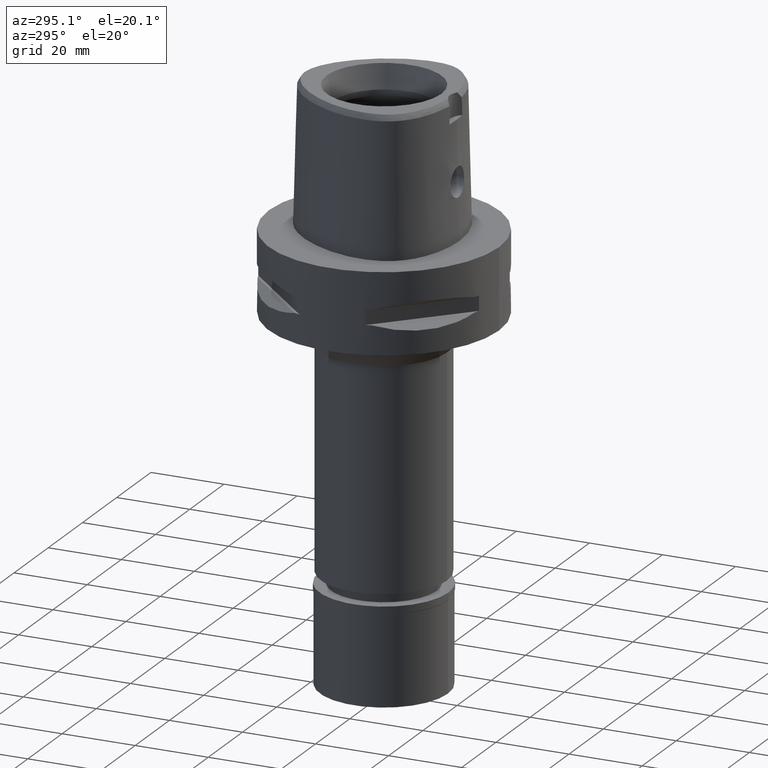
[diagram: clean part render]
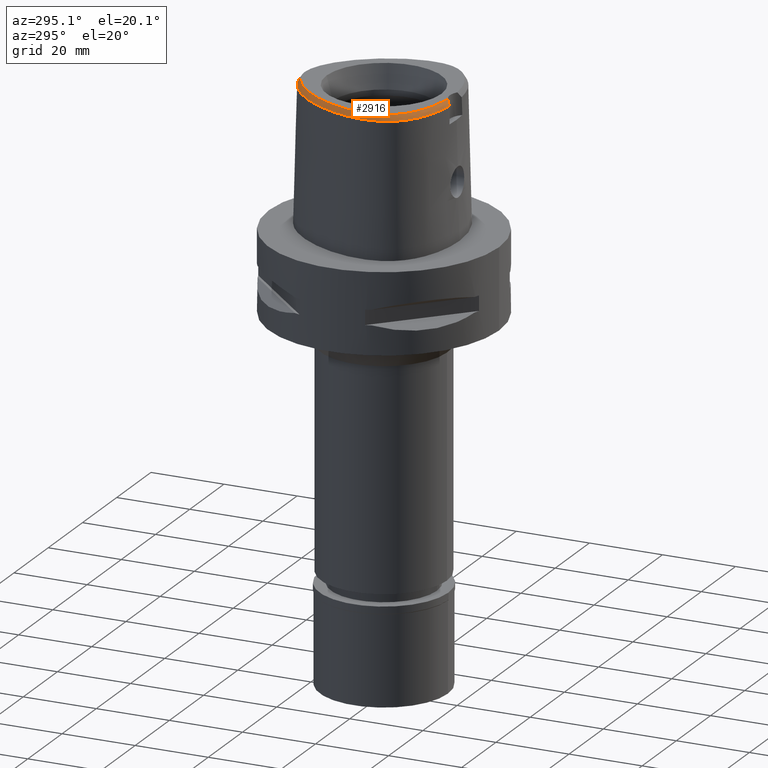
[diagram: same view with one face highlighted and labeled with its STEP entity id]
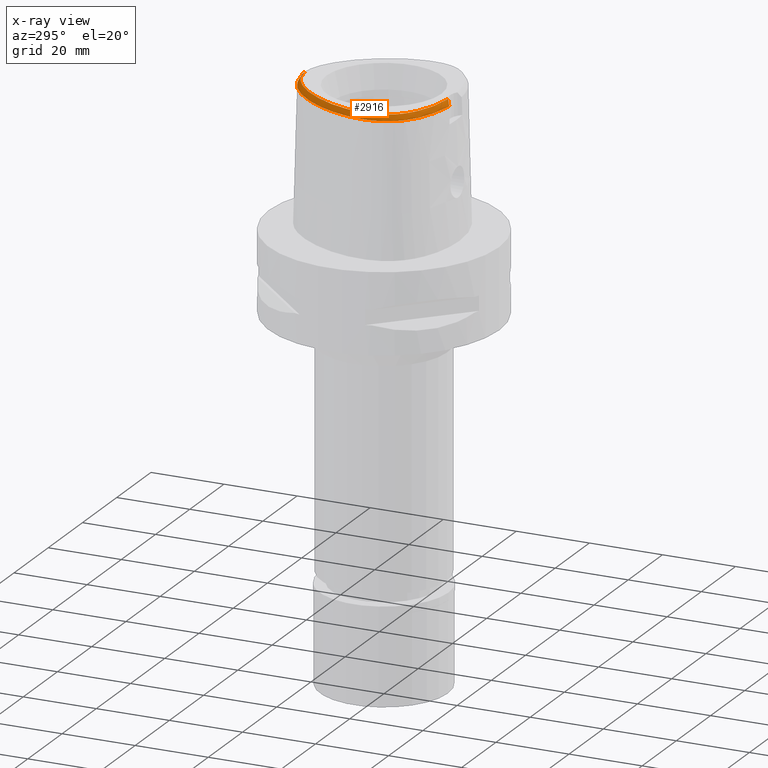
[diagram: x-ray of the same camera — body ghosted, the highlighted face saturated]
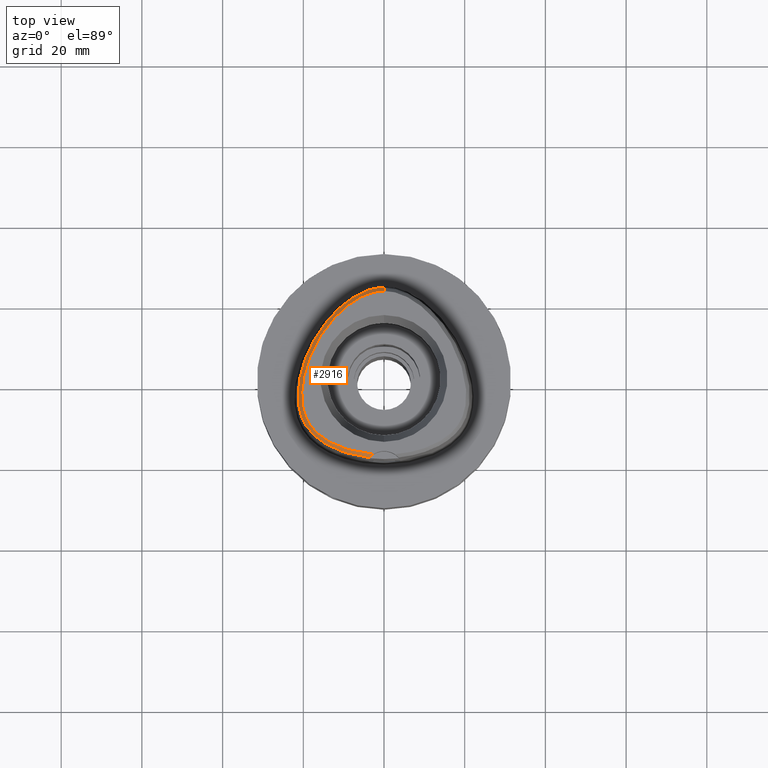
[diagram: same view with one face highlighted and labeled with its STEP entity id]
A machine part, auxiliary view. The second image highlights one B-rep face of the part: STEP entity #2916.
The next image is the same camera in x-ray: the body ghosted, the highlighted face saturated — about 0% of this face is hidden behind the body in this view.
A second angle (top view) of the same face is appended — the face is thin or edge-on in the first view.
In plain terms, the highlighted face is a freeform B-spline surface patch.
Its self-contained STEP definition (entity closure, byte-faithful):
#2 = CARTESIAN_POINT ( 'NONE',  ( -21.00102943122999832, -3.250534568820000025, 36.95511061116999940 ) ) ;
#20 = VECTOR ( 'NONE', #778, 1000.000000000000227 ) ;
#28 = CARTESIAN_POINT ( 'NONE',  ( -20.98135576022000137, -5.318492603149000963, 36.95511126988999706 ) ) ;
#46 = CARTESIAN_POINT ( 'NONE',  ( -15.14921443966999881, -15.03695163559000036, 37.56671062865999744 ) ) ;
#54 = CARTESIAN_POINT ( 'NONE',  ( -2.064446803804000030, 21.75495722301000256, 37.56671036800000252 ) ) ;
#69 = CARTESIAN_POINT ( 'NONE',  ( -17.62665437073999897, -13.92278033562000061, 36.34351080245999555 ) ) ;
#83 = CARTESIAN_POINT ( 'NONE',  ( -1.323674540694137924, 21.61098849315630588, 37.99999999999813127 ) ) ;
#103 = CARTESIAN_POINT ( 'NONE',  ( -12.48121752644000004, -16.57284500088999835, 37.56671032302000413 ) ) ;
#111 = CARTESIAN_POINT ( 'NONE',  ( 0.6489545801235000466, 22.65011139982999921, 36.34351040314999892 ) ) ;
#128 = CARTESIAN_POINT ( 'NONE',  ( -8.900063453854000883, -17.54880137481999824, 38.17830965451000225 ) ) ;
#139 = CARTESIAN_POINT ( 'NONE',  ( -0.2181979014508502734, 21.68728795389289132, 37.99999999999408118 ) ) ;
#154 = CARTESIAN_POINT ( 'NONE',  ( -13.62909769844999985, -16.39552295365000134, 36.95511059141999510 ) ) ;
#161 = CARTESIAN_POINT ( 'NONE',  ( 0.4143115233763999816, 22.29992787075000038, 36.95511062957000092 ) ) ;
#187 = CARTESIAN_POINT ( 'NONE',  ( -13.33457781969839218, -15.85148397417214561, 38.00000000000284217 ) ) ;
#194 = CARTESIAN_POINT ( 'NONE',  ( -16.06363522287999857, 11.79997895842000055, 36.34351191068999753 ) ) ;
#199 = CARTESIAN_POINT ( 'NONE',  ( -15.24692477332519225, 11.25717358966607407, 38.00000000000738254 ) ) ;
#213 = CARTESIAN_POINT ( 'NONE',  ( -6.889690244847000322, 19.87555726357999930, 37.56671037325000384 ) ) ;
#218 = CARTESIAN_POINT ( 'NONE',  ( -17.90324032096775397, -13.53935111954965009, 36.52186244847999319 ) ) ;
#232 = CARTESIAN_POINT ( 'NONE',  ( -16.00748501253000100, 9.854529870437000127, 38.17831010891999455 ) ) ;
#253 = CARTESIAN_POINT ( 'NONE',  ( -15.71788912669132898, -14.29843101566465435, 37.99999999999590727 ) ) ;
#259 = CARTESIAN_POINT ( 'NONE',  ( -12.63226714992000055, 15.06240004136000010, 37.56671060359000336 ) ) ;
#263 = CARTESIAN_POINT ( 'NONE',  ( -19.55745547456097810, -11.29150218116449977, 36.52186244847999319 ) ) ;
#284 = CARTESIAN_POINT ( 'NONE',  ( -18.69730926178999653, 4.220137340517999824, 38.17831017808000382 ) ) ;
#288 = CARTESIAN_POINT ( 'NONE',  ( -20.09619618740927294, -10.23243843868758063, 36.52186244847999319 ) ) ;
#302 = CARTESIAN_POINT ( 'NONE',  ( -18.31748213707045991, -11.58791794387878937, 37.99999999999290168 ) ) ;
#306 = CARTESIAN_POINT ( 'NONE',  ( -19.37774529549000135, 4.467909294189999159, 36.95511023984000332 ) ) ;
#327 = CARTESIAN_POINT ( 'NONE',  ( -20.25863257359999992, -5.271641003873999587, 38.17831000230999905 ) ) ;
#352 = CARTESIAN_POINT ( 'NONE',  ( -20.54800831522000237, 0.3479194140190000062, 36.95511287576000115 ) ) ;
#376 = CARTESIAN_POINT ( 'NONE',  ( -20.89312111405000039, -6.256763397701000429, 36.95511092666999531 ) ) ;
#380 = CARTESIAN_POINT ( 'NONE',  ( -1.667908476505000272E-11, 22.56201468012000078, 36.52186680743999858 ) ) ;
#403 = CARTESIAN_POINT ( 'NONE',  ( -21.36276854922999746, -3.234256517494000338, 36.34351085939999848 ) ) ;
#431 = CARTESIAN_POINT ( 'NONE',  ( -18.23078284522000203, -11.52765225463999954, 38.17831014231000353 ) ) ;
#452 = CARTESIAN_POINT ( 'NONE',  ( -12.32610348629000008, -16.24565034941999997, 38.17831013114000172 ) ) ;
#483 = CARTESIAN_POINT ( 'NONE',  ( -17.00823855181999633, -14.50095648319999952, 36.34351069871999584 ) ) ;
#493 = CARTESIAN_POINT ( 'NONE',  ( -2.709960719620000180, 21.24319296506000043, 38.17831004709999831 ) ) ;
#500 = CARTESIAN_POINT ( 'NONE',  ( -9.524337278002114715, 17.70558492631212744, 38.00000000000117240 ) ) ;
#517 = CARTESIAN_POINT ( 'NONE',  ( -10.37699852803000056, -17.82987225919999830, 36.95511229073999715 ) ) ;
#525 = CARTESIAN_POINT ( 'NONE',  ( -4.474848303687999795, 21.44474271624000039, 36.95511061594999802 ) ) ;
#530 = CARTESIAN_POINT ( 'NONE',  ( -16.88647904405097577, 8.517821442302913937, 38.00000000000260059 ) ) ;
#544 = CARTESIAN_POINT ( 'NONE',  ( -6.305316006163000253, -18.92573707572000075, 36.95511051980999895 ) ) ;
#550 = CARTESIAN_POINT ( 'NONE',  ( 0.6088062083526000201, 21.92739685778999714, 37.56671024359999933 ) ) ;
#557 = ORIENTED_EDGE ( 'NONE', *, *, #4214, .T. ) ;
#575 = CARTESIAN_POINT ( 'NONE',  ( -13.32239885386000111, 13.69615550035999973, 38.17831016678999845 ) ) ;
#580 = CARTESIAN_POINT ( 'NONE',  ( -16.09805956313734399, 9.908742513516772377, 38.00000000000199663 ) ) ;
#595 = CARTESIAN_POINT ( 'NONE',  ( -4.743293269510999721, -18.82114659746000029, 37.56671038043000266 ) ) ;
#601 = CARTESIAN_POINT ( 'NONE',  ( -14.25898094420000106, 12.48508508285999952, 38.17831003239999887 ) ) ;
#620 = CARTESIAN_POINT ( 'NONE',  ( -8.930096025510366076, -17.65000298921187394, 37.99999999999752021 ) ) ;
#625 = CARTESIAN_POINT ( 'NONE',  ( -7.073550691091000431, 20.18751749217000224, 36.95511063603999702 ) ) ;
#628 = CARTESIAN_POINT ( 'NONE',  ( -2.682279906006999948, -18.78035848609999903, 38.00000000000000000 ) ) ;
#650 = CARTESIAN_POINT ( 'NONE',  ( -18.48950513460999900, 7.520691064685999905, 36.34351193996000262 ) ) ;
#653 = CARTESIAN_POINT ( 'NONE',  ( -3.637738201363999835, -19.56971413236999879, 36.52186244848000030 ) ) ;
#654 = CARTESIAN_POINT ( 'NONE',  ( -7.300578999876961461, -19.07170748891781642, 36.52186244847999319 ) ) ;
#677 = CARTESIAN_POINT ( 'NONE',  ( -16.93949113158000230, 10.41237437246999953, 36.34351091327000205 ) ) ;
#681 = CARTESIAN_POINT ( 'NONE',  ( -19.88562090098304225, 4.345879983791733459, 36.52186244847999319 ) ) ;
#699 = CARTESIAN_POINT ( 'NONE',  ( -6.188376196366188076, -18.31830638231296504, 37.99999999999410960 ) ) ;
#702 = CARTESIAN_POINT ( 'NONE',  ( -18.58579624952999865, -10.98086790264000001, 38.17831008964000006 ) ) ;
#726 = CARTESIAN_POINT ( 'NONE',  ( -21.25258978152000111, -6.300570171731000535, 36.34351135956000434 ) ) ;
#730 = CARTESIAN_POINT ( 'NONE',  ( -17.27359245832990808, 9.972912913898122511, 36.52186244847999319 ) ) ;
#755 = CARTESIAN_POINT ( 'NONE',  ( -20.56028056977000062, -2.152254876957000018, 37.56671025525000118 ) ) ;
#778 = DIRECTION ( 'NONE',  ( -1.049600121539012948E-11, -0.5092834681090075977, 0.8605988316927122295 ) ) ;
#780 = CARTESIAN_POINT ( 'NONE',  ( -20.46784976234999931, -9.571995143602000766, 36.34351135985999548 ) ) ;
#802 = LINE ( 'NONE', #4300, #20 ) ;
#803 = CARTESIAN_POINT ( 'NONE',  ( -19.86448894148000122, -10.92416790875000032, 36.34351060221000296 ) ) ;
#831 = CARTESIAN_POINT ( 'NONE',  ( -9.209096624503999351, -18.59015927545000224, 36.34351513467000672 ) ) ;
#856 = CARTESIAN_POINT ( 'NONE',  ( -13.28431807553000077, -15.75864385743000184, 38.17831011809000330 ) ) ;
#864 = CARTESIAN_POINT ( 'NONE',  ( -0.02769210695919000279, 22.67416389592000314, 36.34351122328000372 ) ) ;
#868 = CARTESIAN_POINT ( 'NONE',  ( -2.735698246183103866, 21.34559102902262495, 37.99999999999898392 ) ) ;
#884 = CARTESIAN_POINT ( 'NONE',  ( -17.91221875991000090, -13.09629732174999894, 36.95511066914999532 ) ) ;
#891 = CARTESIAN_POINT ( 'NONE',  ( 0.6288803942381000489, 22.28875412880999818, 36.95511032338000490 ) ) ;
#896 = CARTESIAN_POINT ( 'NONE',  ( -0.6498990081534736785, 21.67378274708021735, 37.99999999999707967 ) ) ;
#914 = CARTESIAN_POINT ( 'NONE',  ( -16.52979968160999746, -13.95719862706000036, 37.56671032092000218 ) ) ;
#924 = CARTESIAN_POINT ( 'NONE',  ( 0.5887320224670999913, 21.56603958677999699, 38.17831016382999820 ) ) ;
#939 = CARTESIAN_POINT ( 'NONE',  ( -15.65286253192999943, -14.21525480452000068, 38.17831009545000143 ) ) ;
#964 = CARTESIAN_POINT ( 'NONE',  ( -3.549863245251999366, -18.96314958482000179, 37.56671060755000013 ) ) ;
#971 = CARTESIAN_POINT ( 'NONE',  ( -0.7113603786769000514, 22.65276600530000195, 36.34351065005999715 ) ) ;
#1000 = CARTESIAN_POINT ( 'NONE',  ( -7.596799095080999820, 19.00659360902999850, 38.17831010643000411 ) ) ;
#1022 = CARTESIAN_POINT ( 'NONE',  ( -2.682279906006999948, -18.78035848609999903, 38.00000000000000000 ) ) ;
#1028 = CARTESIAN_POINT ( 'NONE',  ( -8.515240679879001462, 18.36184347069000111, 38.17831016852000658 ) ) ;
#1045 = CARTESIAN_POINT ( 'NONE',  ( -3.587927038058000395, -19.32313742839000170, 36.95511120105000202 ) ) ;
#1053 = CARTESIAN_POINT ( 'NONE',  ( -17.50897974303999760, 7.053358007689999987, 38.17830999840000317 ) ) ;
#1079 = CARTESIAN_POINT ( 'NONE',  ( -5.163151769510000655, 20.76856345068999943, 37.56671050388000310 ) ) ;
#1084 = CARTESIAN_POINT ( 'NONE',  ( -3.470663397179000465E-11, 21.68728795390000030, 38.00000000000000000 ) ) ;
#1106 = CARTESIAN_POINT ( 'NONE',  ( -6.344287324001999906, 21.00342052184999986, 36.34351153978000326 ) ) ;
#1126 = CARTESIAN_POINT ( 'NONE',  ( -20.38301517463064627, -3.278344853328179820, 38.00000000000311928 ) ) ;
#1128 = CARTESIAN_POINT ( 'NONE',  ( -21.11606385792999774, -7.198823815722000141, 36.34351070759999658 ) ) ;
#1150 = CARTESIAN_POINT ( 'NONE',  ( -21.12979094358999888, -0.8629118107976000429, 36.34351141299999455 ) ) ;
#1180 = CARTESIAN_POINT ( 'NONE',  ( -20.58550223145999780, -7.955585324347000054, 36.95511055069999884 ) ) ;
#1207 = CARTESIAN_POINT ( 'NONE',  ( -19.45031256400000075, -9.191159262313000511, 38.17831006085000212 ) ) ;
#1226 = CARTESIAN_POINT ( 'NONE',  ( -20.72041663207999918, -8.830619310370998676, 36.34351086835000189 ) ) ;
#1256 = CARTESIAN_POINT ( 'NONE',  ( -18.52815949970000275, -11.73436223650000088, 37.56671029586999566 ) ) ;
#1264 = CARTESIAN_POINT ( 'NONE',  ( -3.449245470848000039, 21.03441036834999878, 38.17831006123999771 ) ) ;
#1284 = CARTESIAN_POINT ( 'NONE',  ( -16.76901911670999823, -14.22907755513000083, 36.95511050981999546 ) ) ;
#1296 = CARTESIAN_POINT ( 'NONE',  ( -8.578220530113439324, 18.44656747109592843, 38.00000000000449063 ) ) ;
#1312 = CARTESIAN_POINT ( 'NONE',  ( -11.27774951864000030, -16.71033914108999952, 38.17831013875000679 ) ) ;
#1319 = CARTESIAN_POINT ( 'NONE',  ( -4.345907579218999395, 21.10634236079999937, 37.56671036492999605 ) ) ;
#1323 = CARTESIAN_POINT ( 'NONE',  ( -2.017025177696206484, 21.50280829368114510, 37.99999999999505462 ) ) ;
#1337 = CARTESIAN_POINT ( 'NONE',  ( -9.003074510738001024, -17.89592067502999839, 37.56671148123000137 ) ) ;
#1346 = CARTESIAN_POINT ( 'NONE',  ( -0.6886679516403000356, 22.29131122541000209, 36.95511047912000180 ) ) ;
#1350 = CARTESIAN_POINT ( 'NONE',  ( -18.24302769442206440, 5.671232572958088802, 37.99999999999547384 ) ) ;
#1375 = CARTESIAN_POINT ( 'NONE',  ( -4.254559144977671181, 20.86660163697122172, 37.99999999999945999 ) ) ;
#1386 = CARTESIAN_POINT ( 'NONE',  ( -2.128803062283000092, -19.80221074915999679, 36.34351180180999563 ) ) ;
#1393 = CARTESIAN_POINT ( 'NONE',  ( -13.17174738553999980, 15.54546549187999993, 36.34351177938999911 ) ) ;
#1411 = CARTESIAN_POINT ( 'NONE',  ( -2.084353859714000112, -19.07971447002000076, 37.56671060944999851 ) ) ;
#1421 = CARTESIAN_POINT ( 'NONE',  ( -5.459378387970000190, 21.42946370852000371, 36.34351139822999954 ) ) ;
#1445 = CARTESIAN_POINT ( 'NONE',  ( -10.14935895585999859, 18.46131327624000207, 36.34351244778000023 ) ) ;
#1467 = CARTESIAN_POINT ( 'NONE',  ( -10.41831014525999954, 16.78848452799000057, 38.17830967361999939 ) ) ;
#1471 = CARTESIAN_POINT ( 'NONE',  ( -21.14970188364319981, -6.717195958887502982, 36.52186244847999319 ) ) ;
#1485 = CARTESIAN_POINT ( 'NONE',  ( -2.841965291530418991, -18.76757795571528931, 37.99999999999712230 ) ) ;
#1491 = CARTESIAN_POINT ( 'NONE',  ( -9.687824867092999170, 17.90326159948000040, 37.56671077841999562 ) ) ;
#1496 = CARTESIAN_POINT ( 'NONE',  ( -14.22011356155736017, -16.41829364186009954, 36.52186244847999319 ) ) ;
#1515 = CARTESIAN_POINT ( 'NONE',  ( -20.27898581532421218, -6.181921586190105344, 38.00000000000074607 ) ) ;
#1520 = CARTESIAN_POINT ( 'NONE',  ( -20.05575205312999998, -1.025498757041999998, 38.17831005512999809 ) ) ;
#1541 = CARTESIAN_POINT ( 'NONE',  ( -20.59419922445000140, 1.764168493356999878, 36.34351521504000004 ) ) ;
#1566 = CARTESIAN_POINT ( 'NONE',  ( -19.78949163012000056, -9.318104556075999412, 37.56671049384999606 ) ) ;
#1596 = CARTESIAN_POINT ( 'NONE',  ( -19.03752727863999894, 4.344023317354000824, 37.56671020895999646 ) ) ;
#1621 = CARTESIAN_POINT ( 'NONE',  ( -21.34271735352999855, -5.341918402786999920, 36.34351190366999873 ) ) ;
#1626 = CARTESIAN_POINT ( 'NONE',  ( -4.757642277158897315, 21.67478330407530862, 36.52186244847999319 ) ) ;
#1640 = CARTESIAN_POINT ( 'NONE',  ( -18.11130139015000395, -12.29693286596999968, 37.56671053323000820 ) ) ;
#1649 = CARTESIAN_POINT ( 'NONE',  ( -2.798239866780000362, 21.59441606085000132, 37.56671052725000237 ) ) ;
#1668 = CARTESIAN_POINT ( 'NONE',  ( -19.51487629300999771, -11.54418126975999925, 36.34351109240000000 ) ) ;
#1676 = VERTEX_POINT ( 'NONE', #5006 ) ;
#1699 = CARTESIAN_POINT ( 'NONE',  ( -13.80148750991999940, -16.71396250174999665, 36.34351082809000388 ) ) ;
#1705 = CARTESIAN_POINT ( 'NONE',  ( -4.216966854749999882, 20.76794200536999924, 38.17831011390000384 ) ) ;
#1710 = CARTESIAN_POINT ( 'NONE',  ( -20.16012968311599352, -1.009698174524602754, 38.00000000000296296 ) ) ;
#1722 = CARTESIAN_POINT ( 'NONE',  ( -15.56210993468999959, -15.63197133262000271, 36.34351187523999727 ) ) ;
#1751 = CARTESIAN_POINT ( 'NONE',  ( -14.72337912635999935, -16.18087779592999809, 36.34351139373000450 ) ) ;
#1761 = CARTESIAN_POINT ( 'NONE',  ( -0.02690467820651000139, 22.31202007358999850, 36.95511084070000152 ) ) ;
#1763 = B_SPLINE_SURFACE_WITH_KNOTS ( 'NONE', 3, 3, ( 
 ( #924, #550, #891, #111 ),
 ( #4073, #4874, #161, #3304 ),
 ( #2142, #3996, #1761, #864 ),
 ( #2480, #4491, #1346, #971 ),
 ( #4022, #4817, #2563, #3336 ),
 ( #3607, #54, #4788, #3279 ),
 ( #493, #1649, #2840, #3226 ),
 ( #1264, #2453, #4386, #3251 ),
 ( #1705, #1319, #525, #2116 ),
 ( #3684, #1079, #3808, #1421 ),
 ( #4971, #3357, #3455, #1106 ),
 ( #1835, #213, #625, #2966 ),
 ( #1000, #2611, #4587, #4540 ),
 ( #1028, #2225, #4616, #4895 ),
 ( #2655, #1491, #4565, #1445 ),
 ( #1467, #2996, #4995, #3068 ),
 ( #4155, #2689, #1881, #4178 ),
 ( #3381, #259, #2205, #1393 ),
 ( #575, #3764, #2589, #3406 ),
 ( #601, #3020, #2178, #4130 ),
 ( #4203, #3782, #3737, #194 ),
 ( #232, #4948, #3834, #677 ),
 ( #1787, #4516, #1808, #3041 ),
 ( #1053, #2632, #4917, #650 ),
 ( #2251, #1858, #3430, #2278 ),
 ( #284, #1596, #306, #4733 ),
 ( #3572, #3945, #2298, #3900 ),
 ( #3483, #1933, #3142, #1541 ),
 ( #3855, #2392, #352, #3878 ),
 ( #1520, #4686, #4638, #1150 ),
 ( #3115, #755, #4661, #4278 ),
 ( #3923, #1908, #2, #403 ),
 ( #2733, #3174, #2347, #2005 ),
 ( #327, #1957, #28, #1621 ),
 ( #5020, #3509, #376, #726 ),
 ( #4711, #3196, #2322, #1128 ),
 ( #2710, #3096, #1180, #3526 ),
 ( #5043, #5064, #2759, #1226 ),
 ( #1207, #1566, #4302, #780 ),
 ( #4326, #4253, #4228, #2368 ),
 ( #2783, #1978, #3547, #803 ),
 ( #702, #3273, #2110, #1668 ),
 ( #431, #1256, #2857, #4809 ),
 ( #2136, #1640, #4352, #2833 ),
 ( #2050, #3623, #884, #3244 ),
 ( #3970, #4780, #4400, #69 ),
 ( #3699, #914, #1284, #483 ),
 ( #939, #4428, #2506, #4378 ),
 ( #2446, #46, #2471, #1722 ),
 ( #4014, #2083, #3651, #1751 ),
 ( #856, #3295, #154, #1699 ),
 ( #452, #103, #4459, #2029 ),
 ( #1312, #3325, #4040, #4067 ),
 ( #2884, #3990, #517, #3677 ),
 ( #128, #1337, #3218, #831 ),
 ( #4754, #4836, #2912, #2806 ),
 ( #4865, #2532, #544, #2422 ),
 ( #3596, #595, #2218, #3425 ),
 ( #4091, #964, #1045, #4171 ),
 ( #3399, #3375, #3729, #2272 ),
 ( #2169, #4966, #3828, #4149 ),
 ( #4889, #1411, #1827, #1386 ) ),
 .UNSPECIFIED., .F., .F., .F.,
 ( 4, 1, 1, 1, 1, 1, 1, 1, 1, 1, 1, 1, 1, 1, 1, 1, 1, 1, 1, 1, 1, 1, 1, 1, 1, 1, 1, 1, 1, 1, 1, 1, 1, 1, 1, 1, 1, 1, 1, 1, 1, 1, 1, 1, 1, 1, 1, 1, 1, 1, 1, 1, 1, 1, 1, 1, 1, 1, 1, 4 ),
 ( 4, 4 ),
 ( -0.01585043674195000044, 0.0000000000000000000, 0.01776034072165999858, 0.03552068144391999638, 0.05328102216616999870, 0.07104136288842999303, 0.08880170361069000817, 0.1065620443330000111, 0.1243223850551999909, 0.1420827257775000019, 0.1598430664997000095, 0.1776034072219000171, 0.1953637479442000002, 0.2131240886664000078, 0.2308844293887999943, 0.2486447701109999742, 0.2664051108332999851, 0.2841654515554999927, 0.3019257922778000314, 0.3196861329999999835, 0.3374464737223000221, 0.3552068144444999742, 0.3729671551668000129, 0.3907274958890999961, 0.4084878366113000037, 0.4262481773335999868, 0.4440085180557999944, 0.4617688587780999776, 0.4795291995003000407, 0.4972895402225999684, 0.5150498809447999760, 0.5328102216671000146, 0.5505705623893999423, 0.5683309031115999499, 0.5860912438338999886, 0.6038515845561001072, 0.6216119252783999238, 0.6393722660005999314, 0.6571326067228999701, 0.6748929474452000088, 0.6926532881674000164, 0.7104136288896999440, 0.7281739696118999516, 0.7459343103341999903, 0.7636946510563999979, 0.7814549917787000366, 0.7992153325008999332, 0.8169756732231999719, 0.8347360139455000105, 0.8524963546678000492, 0.8702566953900000568, 0.8880170361122000644, 0.9057773768344999921, 0.9235377175566999997, 0.9412980582790000383, 0.9590583990012000459, 0.9768187397236000047, 0.9945790804457999013, 1.000000000000000000, 1.006922200500000031 ),
 ( -0.09676089982152999425, 1.096785682421999919 ),
 .UNSPECIFIED. ) ;
#1782 = CARTESIAN_POINT ( 'NONE',  ( -17.45119705494202478, -12.68365517585252533, 38.00000000000557776 ) ) ;
#1787 = CARTESIAN_POINT ( 'NONE',  ( -16.79344246096999527, 8.467952010211000413, 38.17831006875999833 ) ) ;
#1808 = CARTESIAN_POINT ( 'NONE',  ( -17.43166930758000177, 8.810054109541999523, 36.95511088048999682 ) ) ;
#1827 = CARTESIAN_POINT ( 'NONE',  ( -2.106578460997999613, -19.44096260958999878, 36.95511120563000418 ) ) ;
#1835 = CARTESIAN_POINT ( 'NONE',  ( -6.705829798604000302, 19.56359703500000080, 38.17831011047000089 ) ) ;
#1856 = CARTESIAN_POINT ( 'NONE',  ( -16.36032397153880069, -13.76458520345250314, 38.00000000000590461 ) ) ;
#1858 = CARTESIAN_POINT ( 'NONE',  ( -18.47956645472999782, 5.770460195703999595, 37.56671046005000392 ) ) ;
#1881 = CARTESIAN_POINT ( 'NONE',  ( -11.90572061914000024, 16.36214117635000065, 36.95511307029000392 ) ) ;
#1902 = CARTESIAN_POINT ( 'NONE',  ( -18.67608643722010342, -11.03561202291370513, 38.00000000000228084 ) ) ;
#1908 = CARTESIAN_POINT ( 'NONE',  ( -20.63929031321999830, -3.266812620147000246, 37.56671036294999766 ) ) ;
#1933 = CARTESIAN_POINT ( 'NONE',  ( -19.89279609761999978, 1.584054522843999946, 37.56671150225000133 ) ) ;
#1957 = CARTESIAN_POINT ( 'NONE',  ( -20.61999416690999709, -5.295066803511999431, 37.56671063609999806 ) ) ;
#1960 = CARTESIAN_POINT ( 'NONE',  ( -3.014271304820794306, -18.99139391531121035, 37.59976690312674208 ) ) ;
#1978 = CARTESIAN_POINT ( 'NONE',  ( -19.22258733829999855, -10.58856342826999963, 37.56671029566999920 ) ) ;
#2005 = CARTESIAN_POINT ( 'NONE',  ( -21.38132512229999804, -4.320571025711000601, 36.34351106457000213 ) ) ;
#2029 = CARTESIAN_POINT ( 'NONE',  ( -12.79144560673999820, -17.22723430382999865, 36.34351070676999740 ) ) ;
#2050 = CARTESIAN_POINT ( 'NONE',  ( -17.37252381547999747, -12.61323789613000024, 38.17831010482999687 ) ) ;
#2083 = CARTESIAN_POINT ( 'NONE',  ( -14.34429694810999933, -15.56378249009000037, 37.56671050271000212 ) ) ;
#2110 = CARTESIAN_POINT ( 'NONE',  ( -19.20518294518999980, -11.35641014738000010, 36.95511075814000179 ) ) ;
#2116 = CARTESIAN_POINT ( 'NONE',  ( -4.603789028156000995, 21.78314307167000052, 36.34351086697999733 ) ) ;
#2136 = CARTESIAN_POINT ( 'NONE',  ( -17.82723697491000081, -12.07228620069000158, 38.17831004463999989 ) ) ;
#2142 = CARTESIAN_POINT ( 'NONE',  ( -0.02532982070113999964, 21.58773242892999988, 38.17831007553999711 ) ) ;
#2146 = CARTESIAN_POINT ( 'NONE',  ( -17.60426951087013236, 7.098774535281521025, 37.99999999999900524 ) ) ;
#2162 = VERTEX_POINT ( 'NONE', #628 ) ;
#2169 = CARTESIAN_POINT ( 'NONE',  ( -2.266602053349000112, -18.70588333901000055, 38.17831000745999859 ) ) ;
#2178 = CARTESIAN_POINT ( 'NONE',  ( -14.84237172153000017, 12.91406982683000138, 36.95511109353000023 ) ) ;
#2205 = CARTESIAN_POINT ( 'NONE',  ( -12.90200726773000106, 15.30393276661999913, 36.95511119149000479 ) ) ;
#2209 = CARTESIAN_POINT ( 'NONE',  ( -10.91891098965358431, -18.03046406390091505, 36.52186244847999319 ) ) ;
#2218 = CARTESIAN_POINT ( 'NONE',  ( -4.794530045916999939, -19.17957276869000083, 36.95511065334000023 ) ) ;
#2221 = CARTESIAN_POINT ( 'NONE',  ( -11.31790883121412072, -16.80796958613696290, 37.99999999999825917 ) ) ;
#2225 = CARTESIAN_POINT ( 'NONE',  ( -8.731260173956000514, 18.65244491917999881, 37.56671023221999661 ) ) ;
#2230 = CARTESIAN_POINT ( 'NONE',  ( -3.637738201363999835, -19.56971413236999879, 36.52186244848000030 ) ) ;
#2251 = CARTESIAN_POINT ( 'NONE',  ( -18.14568575527000149, 5.630397788827999683, 38.17831007474999439 ) ) ;
#2255 = CARTESIAN_POINT ( 'NONE',  ( -18.90964971337862011, -12.28759719904343939, 36.52186244847999319 ) ) ;
#2272 = CARTESIAN_POINT ( 'NONE',  ( -2.715549083620000026, -19.76263000450000007, 36.34351190809000087 ) ) ;
#2278 = CARTESIAN_POINT ( 'NONE',  ( -19.14732785364000023, 6.050585009456000307, 36.34351123062999278 ) ) ;
#2289 = EDGE_CURVE ( 'NONE', #2162, #1676, #3590, .T. ) ;
#2295 = CARTESIAN_POINT ( 'NONE',  ( -19.54919922641956731, -9.228169790567967823, 38.00000000000279954 ) ) ;
#2298 = CARTESIAN_POINT ( 'NONE',  ( -19.85409426657000154, 3.051735813563000388, 36.95511196206999927 ) ) ;
#2322 = CARTESIAN_POINT ( 'NONE',  ( -20.75971175261999946, -7.134360385731000065, 36.95511051541999592 ) ) ;
#2326 = CARTESIAN_POINT ( 'NONE',  ( -2.376843896516897647, 22.39422508474007856, 36.52186244847999319 ) ) ;
#2347 = CARTESIAN_POINT ( 'NONE',  ( -21.01922805624000290, -4.317191450520999396, 36.95511074059000123 ) ) ;
#2350 = CARTESIAN_POINT ( 'NONE',  ( -3.339321438845773926, -19.25325016371907338, 37.10705438595341121 ) ) ;
#2368 = CARTESIAN_POINT ( 'NONE',  ( -20.18171704744000294, -10.26930599215000051, 36.34351108267000541 ) ) ;
#2392 = CARTESIAN_POINT ( 'NONE',  ( -20.19323196460999981, 0.2755352618130000319, 37.56671130202000342 ) ) ;
#2422 = CARTESIAN_POINT ( 'NONE',  ( -6.373763785811999760, -19.28128137091000127, 36.34351071456999449 ) ) ;
#2426 = CARTESIAN_POINT ( 'NONE',  ( -10.15538788053153674, 18.47129535094191155, 36.52186244847999319 ) ) ;
#2446 = CARTESIAN_POINT ( 'NONE',  ( -14.94276669215999931, -14.73944178707999875, 38.17831000537000108 ) ) ;
#2453 = CARTESIAN_POINT ( 'NONE',  ( -3.558221811805999835, 21.37976524016000113, 37.56671049289000308 ) ) ;
#2471 = CARTESIAN_POINT ( 'NONE',  ( -15.35566218718000009, -15.33446148410000021, 36.95511125195000091 ) ) ;
#2480 = CARTESIAN_POINT ( 'NONE',  ( -0.6432830975672000351, 21.56840166560999705, 38.17831013725000133 ) ) ;
#2491 = EDGE_LOOP ( 'NONE', ( #557, #4504, #3894, #2775 ) ) ;
#2506 = CARTESIAN_POINT ( 'NONE',  ( -16.09894209703999834, -14.78583993559999854, 36.95511072405000164 ) ) ;
#2520 = CARTESIAN_POINT ( 'NONE',  ( -14.34402387965797843, 12.54761970512409874, 37.99999999999850786 ) ) ;
#2530 = B_SPLINE_CURVE_WITH_KNOTS ( 'NONE', 3,
 ( #1022, #1485, #4225, #2607, #699, #3731, #620, #4561, #2221, #2627, #187, #3802, #3353, #253, #1856, #4968, #1782, #3036, #302, #1902, #2708, #4251, #2295, #3852, #3477, #5015, #1515, #4636, #3093, #1126, #4412, #1710, #4823, #4077, #2948, #4027, #1350, #2146, #530, #580, #199, #2520, #3741, #2544, #4105, #4054, #500, #1296, #2869, #3665, #3308, #2925, #1375, #3257, #868, #1323, #83, #896, #139, #2844 ),
 .UNSPECIFIED., .F., .F.,
 ( 4, 1, 1, 1, 1, 1, 1, 1, 1, 1, 1, 1, 1, 1, 1, 1, 1, 1, 1, 1, 1, 1, 1, 1, 1, 1, 1, 1, 1, 1, 1, 1, 1, 1, 1, 1, 1, 1, 1, 1, 1, 1, 1, 1, 1, 1, 1, 1, 1, 1, 1, 1, 1, 1, 1, 1, 1, 4 ),
 ( 0.0000000000000000000, 0.005420919554200098744, 0.02318126027639999531, 0.04094160099879995407, 0.05870194172099996166, 0.07646228244330000035, 0.09422262316550000794, 0.1119829638877999356, 0.1297433046099999432, 0.1475036453321999508, 0.1652639860544999895, 0.1830243267768000281, 0.2007846674991000668, 0.2185450082212999634, 0.2363053489436000021, 0.2540656896658000097, 0.2718260303881000484, 0.2895863711103000560, 0.3073467118325999836, 0.3251070525547999912, 0.3428673932771000299, 0.3606277339994000686, 0.3783880747216000762, 0.3961484154438998928, 0.4139087561661000114, 0.4316690968884000501, 0.4494294376106000577, 0.4671897783328999854, 0.4849501190552000240, 0.5027104597774000316, 0.5204708004996999593, 0.5382311412219000779, 0.5559914819442000056, 0.5737518226664000132, 0.5915121633886999408, 0.6092725041108999484, 0.6270328448331999871, 0.6447931855555000258, 0.6625535262777000334, 0.6803138669999999610, 0.6980742077221999686, 0.7158345484445000073, 0.7335948891667000149, 0.7513552298890000536, 0.7691155706112000612, 0.7868759113336000199, 0.8046362520558000275, 0.8223965927780999552, 0.8401569335002999628, 0.8579172742224999704, 0.8756776149448000091, 0.8934379556670000166, 0.9111982963893099363, 0.9289586371115700070, 0.9467189778338299666, 0.9644793185560800453, 0.9822396592783400049, 1.000000000000000000 ),
 .UNSPECIFIED. ) ;
#2532 = CARTESIAN_POINT ( 'NONE',  ( -6.236868226513999858, -18.57019278053000022, 37.56671032506000074 ) ) ;
#2544 = CARTESIAN_POINT ( 'NONE',  ( -12.44116897271115008, 14.89128547409350212, 38.00000000000318323 ) ) ;
#2563 = CARTESIAN_POINT ( 'NONE',  ( -1.400592116731999903, 22.22492229080999948, 36.95511025773000569 ) ) ;
#2589 = CARTESIAN_POINT ( 'NONE',  ( -13.88462404569999897, 14.15253690017999944, 36.95511030600999902 ) ) ;
#2607 = CARTESIAN_POINT ( 'NONE',  ( -4.706994425064950249, -18.56721852572889020, 38.00000000000612488 ) ) ;
#2611 = CARTESIAN_POINT ( 'NONE',  ( -7.797191349387999182, 19.30819150773999837, 37.56671038307000288 ) ) ;
#2627 = CARTESIAN_POINT ( 'NONE',  ( -12.37132652997708249, -16.34104299088107126, 37.99999999999445066 ) ) ;
#2632 = CARTESIAN_POINT ( 'NONE',  ( -17.83582154023000044, 7.209135693354999930, 37.56671064558999262 ) ) ;
#2655 = CARTESIAN_POINT ( 'NONE',  ( -9.457057822708000216, 17.62423576109999601, 38.17830994373999687 ) ) ;
#2689 = CARTESIAN_POINT ( 'NONE',  ( -11.64813121408000107, 16.10768419763999759, 37.56671138268000476 ) ) ;
#2708 = CARTESIAN_POINT ( 'NONE',  ( -18.99520880204248385, -10.46968343926506861, 37.99999999999807443 ) ) ;
#2710 = CARTESIAN_POINT ( 'NONE',  ( -19.88158196130999755, -7.785037542007000155, 38.17831012503999943 ) ) ;
#2733 = CARTESIAN_POINT ( 'NONE',  ( -20.29503392411000107, -4.310432300141999740, 38.17831009263999675 ) ) ;
#2759 = CARTESIAN_POINT ( 'NONE',  ( -20.37416932876999809, -8.724480372354001645, 36.95511061681999365 ) ) ;
#2763 = CARTESIAN_POINT ( 'NONE',  ( -7.108589416785409121, 20.52412325828072071, 36.52186244847999319 ) ) ;
#2775 = ORIENTED_EDGE ( 'NONE', *, *, #2289, .F. ) ;
#2783 = CARTESIAN_POINT ( 'NONE',  ( -18.90163653671000077, -10.42076118803999840, 38.17831014240000087 ) ) ;
#2806 = CARTESIAN_POINT ( 'NONE',  ( -7.831492257379000677, -18.96290750584000051, 36.34351390208000510 ) ) ;
#2833 = CARTESIAN_POINT ( 'NONE',  ( -18.67943022061000136, -12.74622619654999944, 36.34351151041000350 ) ) ;
#2840 = CARTESIAN_POINT ( 'NONE',  ( -2.886519013939000455, 21.94563915663000131, 36.95511100739999932 ) ) ;
#2844 = CARTESIAN_POINT ( 'NONE',  ( -3.470663397179000465E-11, 21.68728795390000030, 38.00000000000000000 ) ) ;
#2857 = CARTESIAN_POINT ( 'NONE',  ( -18.82553615417999993, -11.94107221836999955, 36.95511044943999934 ) ) ;
#2869 = CARTESIAN_POINT ( 'NONE',  ( -7.655222869371907102, 19.09452359226080631, 37.99999999999651834 ) ) ;
#2884 = CARTESIAN_POINT ( 'NONE',  ( -10.13626870084999965, -17.14688039710999945, 38.17830982809999796 ) ) ;
#2912 = CARTESIAN_POINT ( 'NONE',  ( -7.745789550232999865, -18.61111975806999652, 36.95511253044999478 ) ) ;
#2916 = ADVANCED_FACE ( 'NONE', ( #4467 ), #1763, .F. ) ;
#2925 = CARTESIAN_POINT ( 'NONE',  ( -5.058220461389346667, 20.53445508814549925, 37.99999999999403144 ) ) ;
#2948 = CARTESIAN_POINT ( 'NONE',  ( -19.26324493738488286, 2.868570891456704519, 38.00000000000258638 ) ) ;
#2966 = CARTESIAN_POINT ( 'NONE',  ( -7.257411137334000450, 20.49947772075000074, 36.34351089881999997 ) ) ;
#2996 = CARTESIAN_POINT ( 'NONE',  ( -10.66291587119999917, 17.05545344387000029, 37.56671143482000019 ) ) ;
#3020 = CARTESIAN_POINT ( 'NONE',  ( -14.55067633286999929, 12.69957745483999823, 37.56671056297000177 ) ) ;
#3036 = CARTESIAN_POINT ( 'NONE',  ( -17.91005512243474129, -12.13778127739829493, 37.99999999999965894 ) ) ;
#3041 = CARTESIAN_POINT ( 'NONE',  ( -17.75078273089000191, 8.981105159208000899, 36.34351128635999828 ) ) ;
#3068 = CARTESIAN_POINT ( 'NONE',  ( -11.15212732306000021, 17.58939127560999793, 36.34351495720999736 ) ) ;
#3073 = CARTESIAN_POINT ( 'NONE',  ( -21.32871527669617251, -4.105831244394257951, 36.52186244847999319 ) ) ;
#3093 = CARTESIAN_POINT ( 'NONE',  ( -20.40060226222821527, -4.311417605381353546, 38.00000000000544276 ) ) ;
#3096 = CARTESIAN_POINT ( 'NONE',  ( -20.23354209638999990, -7.870311433177000993, 37.56671033786999914 ) ) ;
#3115 = CARTESIAN_POINT ( 'NONE',  ( -20.19992301099999921, -2.187718092907999790, 38.17831015904000225 ) ) ;
#3121 = VERTEX_POINT ( 'NONE', #4482 ) ;
#3142 = CARTESIAN_POINT ( 'NONE',  ( -20.24349766103999926, 1.674111508099999979, 36.95511335865000291 ) ) ;
#3145 = CARTESIAN_POINT ( 'NONE',  ( -2.682279906006999948, -18.78035848609999903, 38.00000000000000000 ) ) ;
#3174 = CARTESIAN_POINT ( 'NONE',  ( -20.65713099016999976, -4.313811875331999168, 37.56671041661000032 ) ) ;
#3196 = CARTESIAN_POINT ( 'NONE',  ( -20.40335964731000118, -7.069896955739999100, 37.56671032324000237 ) ) ;
#3218 = CARTESIAN_POINT ( 'NONE',  ( -9.106085567620999299, -18.24303997523999854, 36.95511330795000049 ) ) ;
#3226 = CARTESIAN_POINT ( 'NONE',  ( -2.974798161098999749, 22.29686225241000130, 36.34351148755000338 ) ) ;
#3244 = CARTESIAN_POINT ( 'NONE',  ( -18.18206623212999773, -13.33782703454999918, 36.34351095131000164 ) ) ;
#3251 = CARTESIAN_POINT ( 'NONE',  ( -3.776174493723000403, 22.07047498378999961, 36.34351135617999518 ) ) ;
#3257 = CARTESIAN_POINT ( 'NONE',  ( -3.481017203588894215, 21.13509756881456170, 37.99999999999868550 ) ) ;
#3273 = CARTESIAN_POINT ( 'NONE',  ( -18.89548959736000455, -11.16863902500999828, 37.56671042389000092 ) ) ;
#3279 = CARTESIAN_POINT ( 'NONE',  ( -2.198320556028000361, 22.46678695259999969, 36.34351087874999564 ) ) ;
#3295 = CARTESIAN_POINT ( 'NONE',  ( -13.45670788699000120, -16.07708340554000159, 37.56671035476000498 ) ) ;
#3304 = CARTESIAN_POINT ( 'NONE',  ( 0.4277593798200000075, 22.66166935100999780, 36.34351088856999468 ) ) ;
#3308 = CARTESIAN_POINT ( 'NONE',  ( -5.893543501600794876, 20.13235399351773225, 38.00000000000266454 ) ) ;
#3325 = CARTESIAN_POINT ( 'NONE',  ( -11.41549507300999977, -17.04520940939000084, 37.56671030454000260 ) ) ;
#3336 = CARTESIAN_POINT ( 'NONE',  ( -1.445613887374999962, 22.58427301468999815, 36.34351029908000186 ) ) ;
#3353 = CARTESIAN_POINT ( 'NONE',  ( -15.00295592774251752, -14.82617991125944634, 38.00000000000103739 ) ) ;
#3357 = CARTESIAN_POINT ( 'NONE',  ( -6.011445045550999566, 20.36019979742999908, 37.56671054091999906 ) ) ;
#3375 = CARTESIAN_POINT ( 'NONE',  ( -2.658750559206000119, -19.04096655396000060, 37.56671063724999726 ) ) ;
#3381 = CARTESIAN_POINT ( 'NONE',  ( -12.36252703211000004, 14.82086731609999930, 38.17831001568999483 ) ) ;
#3399 = CARTESIAN_POINT ( 'NONE',  ( -2.630351296999000166, -18.68013482869000086, 38.17831000182999901 ) ) ;
#3406 = CARTESIAN_POINT ( 'NONE',  ( -14.16573664162000057, 14.38072760008999929, 36.34351037563000375 ) ) ;
#3425 = CARTESIAN_POINT ( 'NONE',  ( -4.845766822323000156, -19.53799893992000136, 36.34351092624000046 ) ) ;
#3430 = CARTESIAN_POINT ( 'NONE',  ( -18.81344715418000035, 5.910522602579999507, 36.95511084534000901 ) ) ;
#3455 = CARTESIAN_POINT ( 'NONE',  ( -6.177866184776999781, 20.68181015964000125, 36.95511104034999761 ) ) ;
#3477 = CARTESIAN_POINT ( 'NONE',  ( -19.98419490691699352, -7.809898894996188723, 38.00000000000263611 ) ) ;
#3483 = CARTESIAN_POINT ( 'NONE',  ( -19.54209453420000386, 1.493997537587000046, 38.17830964586000420 ) ) ;
#3509 = CARTESIAN_POINT ( 'NONE',  ( -20.53365244658000321, -6.212956623670999434, 37.56671049377000315 ) ) ;
#3526 = CARTESIAN_POINT ( 'NONE',  ( -20.93746236654000015, -8.040859215516000802, 36.34351076353999588 ) ) ;
#3547 = CARTESIAN_POINT ( 'NONE',  ( -19.54353813988999633, -10.75636566850999998, 36.95511044893999753 ) ) ;
#3572 = CARTESIAN_POINT ( 'NONE',  ( -19.16241664608999784, 2.837313842985999646, 38.17830988418999993 ) ) ;
#3576 = CARTESIAN_POINT ( 'NONE',  ( -13.70645028111027308, 15.04851272300713205, 36.52186244847999319 ) ) ;
#3590 = B_SPLINE_CURVE_WITH_KNOTS ( 'NONE', 3,
 ( #3145, #1960, #2350, #653 ),
 .UNSPECIFIED., .F., .F.,
 ( 4, 4 ),
 ( 0.0000000000000000000, 1.000000000000000000 ),
 .UNSPECIFIED. ) ;
#3596 = CARTESIAN_POINT ( 'NONE',  ( -4.692056493104999504, -18.46272042624000065, 38.17831010752999532 ) ) ;
#3607 = CARTESIAN_POINT ( 'NONE',  ( -1.997509927691999865, 21.39904235822000089, 38.17831011263000107 ) ) ;
#3623 = CARTESIAN_POINT ( 'NONE',  ( -17.64237128769000051, -12.85476760893999959, 37.56671038698999610 ) ) ;
#3651 = CARTESIAN_POINT ( 'NONE',  ( -14.53383803723999890, -15.87233014301000011, 36.95511094821999620 ) ) ;
#3665 = CARTESIAN_POINT ( 'NONE',  ( -6.759433772717093447, 19.65454812512764704, 37.99999999999567279 ) ) ;
#3677 = CARTESIAN_POINT ( 'NONE',  ( -10.49736344161999924, -18.17136819024999994, 36.34351352206000030 ) ) ;
#3684 = CARTESIAN_POINT ( 'NONE',  ( -5.015038460279000354, 20.43811332177999773, 38.17831005670999645 ) ) ;
#3699 = CARTESIAN_POINT ( 'NONE',  ( -16.29058024651000380, -13.68531969898999989, 38.17831013202000179 ) ) ;
#3729 = CARTESIAN_POINT ( 'NONE',  ( -2.687149821413000073, -19.40179827922999678, 36.95511127267000262 ) ) ;
#3731 = CARTESIAN_POINT ( 'NONE',  ( -7.599370508970913818, -18.01010694911502696, 38.00000000000472511 ) ) ;
#3737 = CARTESIAN_POINT ( 'NONE',  ( -15.76209391121000181, 11.59956736460999949, 36.95511127432000364 ) ) ;
#3741 = CARTESIAN_POINT ( 'NONE',  ( -13.40435640711556431, 13.76268382997501405, 37.99999999999725731 ) ) ;
#3764 = CARTESIAN_POINT ( 'NONE',  ( -13.60351144978000093, 13.92434620026999958, 37.56671023639999873 ) ) ;
#3769 = CARTESIAN_POINT ( 'NONE',  ( -16.39211280191641151, -14.95758113319163307, 36.52186244847999319 ) ) ;
#3782 = CARTESIAN_POINT ( 'NONE',  ( -15.46055259954999883, 11.39915577081000109, 37.56671063793999821 ) ) ;
#3802 = CARTESIAN_POINT ( 'NONE',  ( -14.21001600787389130, -15.34519100086036048, 37.99999999999980105 ) ) ;
#3808 = CARTESIAN_POINT ( 'NONE',  ( -5.311265078739999979, 21.09901357960999846, 36.95511095105999999 ) ) ;
#3828 = CARTESIAN_POINT ( 'NONE',  ( -2.315485943512000322, -19.42810676330000064, 36.95511123970999989 ) ) ;
#3834 = CARTESIAN_POINT ( 'NONE',  ( -16.62882242523000187, 10.22642620513000011, 36.95511064515000044 ) ) ;
#3852 = CARTESIAN_POINT ( 'NONE',  ( -19.78262210840194513, -8.543146992553010577, 38.00000000000549960 ) ) ;
#3855 = CARTESIAN_POINT ( 'NONE',  ( -19.83845561401000168, 0.2031511096071000055, 38.17830972827000124 ) ) ;
#3878 = CARTESIAN_POINT ( 'NONE',  ( -20.90278466582000050, 0.4203035662249999804, 36.34351444950999621 ) ) ;
#3894 = ORIENTED_EDGE ( 'NONE', *, *, #4591, .F. ) ;
#3900 = CARTESIAN_POINT ( 'NONE',  ( -20.19993307680000072, 3.158946798850999826, 36.34351300101999982 ) ) ;
#3923 = CARTESIAN_POINT ( 'NONE',  ( -20.27755119522000271, -3.283090671473000377, 38.17831011472000569 ) ) ;
#3945 = CARTESIAN_POINT ( 'NONE',  ( -19.50825545633000146, 2.944524828275000061, 37.56671092312999605 ) ) ;
#3970 = CARTESIAN_POINT ( 'NONE',  ( -16.86207789398000045, -13.15092139036000063, 38.17831012084000264 ) ) ;
#3990 = CARTESIAN_POINT ( 'NONE',  ( -10.25663361444000010, -17.48837632815000021, 37.56671105942000111 ) ) ;
#3996 = CARTESIAN_POINT ( 'NONE',  ( -0.02611724945382999999, 21.94987625125999742, 37.56671045812000642 ) ) ;
#4014 = CARTESIAN_POINT ( 'NONE',  ( -14.15475585898000155, -15.25523483715999973, 38.17831005720000093 ) ) ;
#4022 = CARTESIAN_POINT ( 'NONE',  ( -1.310548575444999919, 21.50622084305000214, 38.17831017503000623 ) ) ;
#4027 = CARTESIAN_POINT ( 'NONE',  ( -18.79649882724945797, 4.256255933891324617, 37.99999999999563016 ) ) ;
#4040 = CARTESIAN_POINT ( 'NONE',  ( -11.55324062739000013, -17.38007967769999951, 36.95511047032999841 ) ) ;
#4054 = CARTESIAN_POINT ( 'NONE',  ( -10.48962422759294455, 16.86631853279199333, 38.00000000000510170 ) ) ;
#4067 = CARTESIAN_POINT ( 'NONE',  ( -11.69098618177000048, -17.71494994599999728, 36.34351063612000132 ) ) ;
#4073 = CARTESIAN_POINT ( 'NONE',  ( 0.3874158104890000343, 21.57644491023999933, 38.17831011158000365 ) ) ;
#4077 = CARTESIAN_POINT ( 'NONE',  ( -19.64434054692929266, 1.520253387635530418, 37.99999999999799627 ) ) ;
#4091 = CARTESIAN_POINT ( 'NONE',  ( -3.511799452444999581, -18.60316174124999833, 38.17831001404999824 ) ) ;
#4105 = CARTESIAN_POINT ( 'NONE',  ( -11.46564124494619819, 15.92741340513660653, 38.00000000000040501 ) ) ;
#4130 = CARTESIAN_POINT ( 'NONE',  ( -15.13406711020000017, 13.12856219881000008, 36.34351162409000580 ) ) ;
#4149 = CARTESIAN_POINT ( 'NONE',  ( -2.339927888594000027, -19.78921847545000290, 36.34351185583999921 ) ) ;
#4155 = CARTESIAN_POINT ( 'NONE',  ( -11.39054180903000102, 15.85322721894000253, 38.17830969507000560 ) ) ;
#4171 = CARTESIAN_POINT ( 'NONE',  ( -3.625990830864000092, -19.68312527197000250, 36.34351179454999681 ) ) ;
#4178 = CARTESIAN_POINT ( 'NONE',  ( -12.16331002419000029, 16.61659815506000015, 36.34351475790000308 ) ) ;
#4183 = CARTESIAN_POINT ( 'NONE',  ( -4.467522189394354193, -19.48130287050563325, 36.52186244847999319 ) ) ;
#4203 = CARTESIAN_POINT ( 'NONE',  ( -15.15901128788000030, 11.19874417700000002, 38.17831000155999988 ) ) ;
#4214 = EDGE_CURVE ( 'NONE', #2162, #4358, #2530, .T. ) ;
#4225 = CARTESIAN_POINT ( 'NONE',  ( -3.522896839654057199, -18.70811514173412604, 37.99999999999583622 ) ) ;
#4228 = CARTESIAN_POINT ( 'NONE',  ( -19.85097473819000058, -10.12175920017999964, 36.95511075201000040 ) ) ;
#4251 = CARTESIAN_POINT ( 'NONE',  ( -19.28591707036709479, -9.869682450886850589, 37.99999999999588596 ) ) ;
#4253 = CARTESIAN_POINT ( 'NONE',  ( -19.52023242892999733, -9.974212408197999480, 37.56671042133999805 ) ) ;
#4276 = B_SPLINE_CURVE_WITH_KNOTS ( 'NONE', 3,
 ( #2230, #4183, #654, #2209, #1496, #3769, #218, #2255, #263, #288, #4976, #1471, #3073, #4592, #681, #730, #3576, #2426, #2763, #1626, #2326, #5068, #380 ),
 .UNSPECIFIED., .F., .F.,
 ( 4, 1, 1, 1, 1, 1, 1, 1, 1, 1, 1, 1, 1, 1, 1, 1, 1, 1, 1, 1, 4 ),
 ( 0.0000000000000000000, 0.03580973941715354797, 0.1234633994702160759, 0.1672902294965369629, 0.2111170595230682789, 0.2549438895494943735, 0.2768573045627073514, 0.2987707195759204959, 0.3206841345892386674, 0.3425975496023465627, 0.3864243796288777677, 0.4302512096553038901, 0.4740780396817299569, 0.5617316997345820351, 0.6493853597875395289, 0.7370390198403915516, 0.8246926798933490455, 0.8685195099197751123, 0.9123463399462432566, 0.9561731699726903067, 1.000000000000000000 ),
 .UNSPECIFIED. ) ;
#4278 = CARTESIAN_POINT ( 'NONE',  ( -21.28099568730000257, -2.081328445054999587, 36.34351044767999639 ) ) ;
#4300 = CARTESIAN_POINT ( 'NONE',  ( -1.667908476505000272E-11, 22.56201468012000078, 36.52186680743999858 ) ) ;
#4302 = CARTESIAN_POINT ( 'NONE',  ( -20.12867069622999949, -9.445049849839000089, 36.95511092685999444 ) ) ;
#4326 = CARTESIAN_POINT ( 'NONE',  ( -19.18949011967999851, -9.826665616220999766, 38.17831009068000014 ) ) ;
#4352 = CARTESIAN_POINT ( 'NONE',  ( -18.39536580537999910, -12.52157953126000045, 36.95511102181999519 ) ) ;
#4358 = VERTEX_POINT ( 'NONE', #1084 ) ;
#4378 = CARTESIAN_POINT ( 'NONE',  ( -16.32198187959999913, -15.07113250115000014, 36.34351103835000174 ) ) ;
#4386 = CARTESIAN_POINT ( 'NONE',  ( -3.667198152764999719, 21.72512011197999726, 36.95511092453000401 ) ) ;
#4400 = CARTESIAN_POINT ( 'NONE',  ( -17.37179554514999680, -13.66549402052999973, 36.95511057526000087 ) ) ;
#4412 = CARTESIAN_POINT ( 'NONE',  ( -20.30498420086667011, -2.177378896258324037, 38.00000000000241585 ) ) ;
#4428 = CARTESIAN_POINT ( 'NONE',  ( -15.87590231448999667, -14.50054737006000138, 37.56671040975000153 ) ) ;
#4459 = CARTESIAN_POINT ( 'NONE',  ( -12.63633156659000001, -16.90003965236000028, 36.95511051488999499 ) ) ;
#4467 = FACE_OUTER_BOUND ( 'NONE', #2491, .T. ) ;
#4482 = CARTESIAN_POINT ( 'NONE',  ( -1.667908476505000272E-11, 22.56201468012000078, 36.52186680743999858 ) ) ;
#4491 = CARTESIAN_POINT ( 'NONE',  ( -0.6659755246038000509, 21.92985644550999780, 37.56671030817999934 ) ) ;
#4504 = ORIENTED_EDGE ( 'NONE', *, *, #5022, .F. ) ;
#4516 = CARTESIAN_POINT ( 'NONE',  ( -17.11255588428000252, 8.639003059877000013, 37.56671047462999979 ) ) ;
#4540 = CARTESIAN_POINT ( 'NONE',  ( -8.197975858000999594, 19.91138730513999988, 36.34351093635999774 ) ) ;
#4561 = CARTESIAN_POINT ( 'NONE',  ( -10.17136073855599143, -17.24644253470561495, 38.00000000000039790 ) ) ;
#4565 = CARTESIAN_POINT ( 'NONE',  ( -9.918591911477999901, 18.18228743786000123, 36.95511161310000148 ) ) ;
#4587 = CARTESIAN_POINT ( 'NONE',  ( -7.997583603694000232, 19.60978940644000090, 36.95511065971999898 ) ) ;
#4591 = EDGE_CURVE ( 'NONE', #1676, #3121, #4276, .T. ) ;
#4592 = CARTESIAN_POINT ( 'NONE',  ( -21.07430010672428722, -0.4408303445192948145, 36.52186244847999319 ) ) ;
#4616 = CARTESIAN_POINT ( 'NONE',  ( -8.947279668032999567, 18.94304636767999739, 36.95511029593000529 ) ) ;
#4636 = CARTESIAN_POINT ( 'NONE',  ( -20.36398648679373125, -5.278470727085421643, 38.00000000000226663 ) ) ;
#4638 = CARTESIAN_POINT ( 'NONE',  ( -20.77177798009999776, -0.9171074595456000234, 36.95511096037999721 ) ) ;
#4661 = CARTESIAN_POINT ( 'NONE',  ( -20.92063812853000115, -2.116791661006000247, 36.95511035146000722 ) ) ;
#4686 = CARTESIAN_POINT ( 'NONE',  ( -20.41376501662000109, -0.9713031082936000038, 37.56671050775000253 ) ) ;
#4711 = CARTESIAN_POINT ( 'NONE',  ( -20.04700754200000290, -7.005433525748999912, 38.17831013106000171 ) ) ;
#4733 = CARTESIAN_POINT ( 'NONE',  ( -19.71796331234000021, 4.591795271026999359, 36.34351027070999862 ) ) ;
#4754 = CARTESIAN_POINT ( 'NONE',  ( -7.574384135941000906, -17.90754426252000187, 38.17830978719999990 ) ) ;
#4780 = CARTESIAN_POINT ( 'NONE',  ( -17.11693671955999818, -13.40820770544999974, 37.56671034805000176 ) ) ;
#4788 = CARTESIAN_POINT ( 'NONE',  ( -2.131383679915999974, 22.11087208780999802, 36.95511062337000396 ) ) ;
#4809 = CARTESIAN_POINT ( 'NONE',  ( -19.12291280866000065, -12.14778220024000177, 36.34351060299999858 ) ) ;
#4817 = CARTESIAN_POINT ( 'NONE',  ( -1.355570346087999978, 21.86557156693000081, 37.56671021638000241 ) ) ;
#4823 = CARTESIAN_POINT ( 'NONE',  ( -19.94188961899661194, 0.2242544969877313110, 38.00000000000459721 ) ) ;
#4836 = CARTESIAN_POINT ( 'NONE',  ( -7.660086843086999941, -18.25933201029999964, 37.56671115881999157 ) ) ;
#4865 = CARTESIAN_POINT ( 'NONE',  ( -6.168420446864999462, -18.21464848533000236, 38.17831013029999809 ) ) ;
#4874 = CARTESIAN_POINT ( 'NONE',  ( 0.4008636669326999802, 21.93818639048999941, 37.56671037057000007 ) ) ;
#4889 = CARTESIAN_POINT ( 'NONE',  ( -2.062129258429000078, -18.71846633044999919, 38.17831001328000440 ) ) ;
#4895 = CARTESIAN_POINT ( 'NONE',  ( -9.163299162110000395, 19.23364781616999863, 36.34351035963999976 ) ) ;
#4917 = CARTESIAN_POINT ( 'NONE',  ( -18.16266333741999617, 7.364913379020999962, 36.95511129278000340 ) ) ;
#4948 = CARTESIAN_POINT ( 'NONE',  ( -16.31815371888000143, 10.04047803777999981, 37.56671037703999616 ) ) ;
#4966 = CARTESIAN_POINT ( 'NONE',  ( -2.291043998430999817, -19.06699505115999926, 37.56671062358999791 ) ) ;
#4968 = CARTESIAN_POINT ( 'NONE',  ( -16.93638123745645530, -13.22593246128633737, 37.99999999999507594 ) ) ;
#4971 = CARTESIAN_POINT ( 'NONE',  ( -5.845023906325001128, 20.03858943522000047, 38.17831004148000318 ) ) ;
#4976 = CARTESIAN_POINT ( 'NONE',  ( -20.67704215115632138, -8.734985316448888426, 36.52186244847999319 ) ) ;
#4995 = CARTESIAN_POINT ( 'NONE',  ( -10.90752159712999969, 17.32242235974000266, 36.95511319600999656 ) ) ;
#5006 = CARTESIAN_POINT ( 'NONE',  ( -3.637738201363999835, -19.56971413236999879, 36.52186244848000030 ) ) ;
#5015 = CARTESIAN_POINT ( 'NONE',  ( -20.15090095365270528, -7.024227649787565753, 38.00000000000218137 ) ) ;
#5020 = CARTESIAN_POINT ( 'NONE',  ( -20.17418377910999894, -6.169149849641999417, 38.17831006088000123 ) ) ;
#5022 = EDGE_CURVE ( 'NONE', #3121, #4358, #802, .T. ) ;
#5043 = CARTESIAN_POINT ( 'NONE',  ( -19.68167472214999947, -8.512202496322000655, 38.17831011375999850 ) ) ;
#5064 = CARTESIAN_POINT ( 'NONE',  ( -20.02792202546000055, -8.618341434338001150, 37.56671036528999963 ) ) ;
#5068 = CARTESIAN_POINT ( 'NONE',  ( -0.7901461696974663163, 22.56201478746771727, 36.52186244847999319 ) ) ;